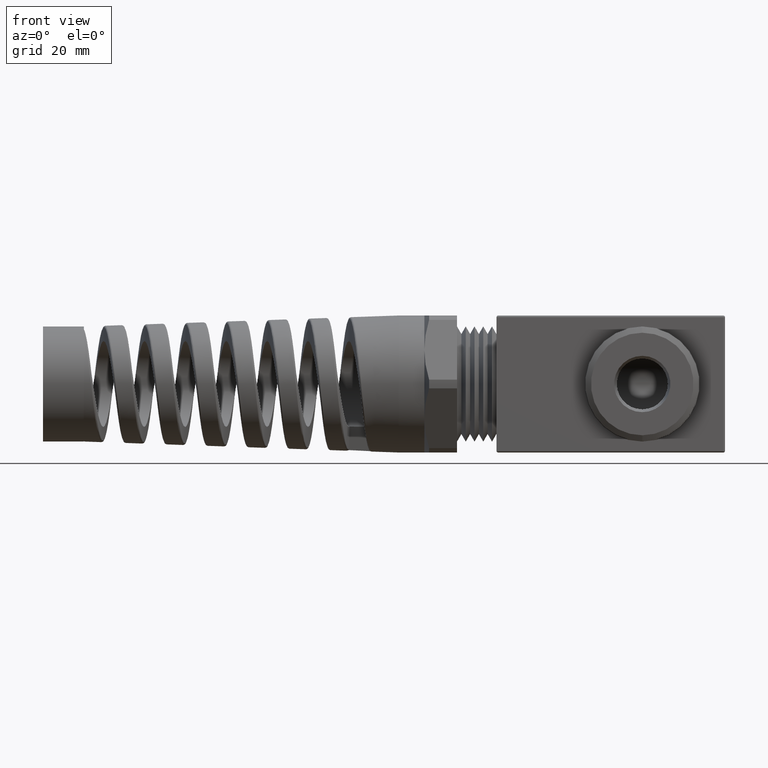
[diagram: clean part render]
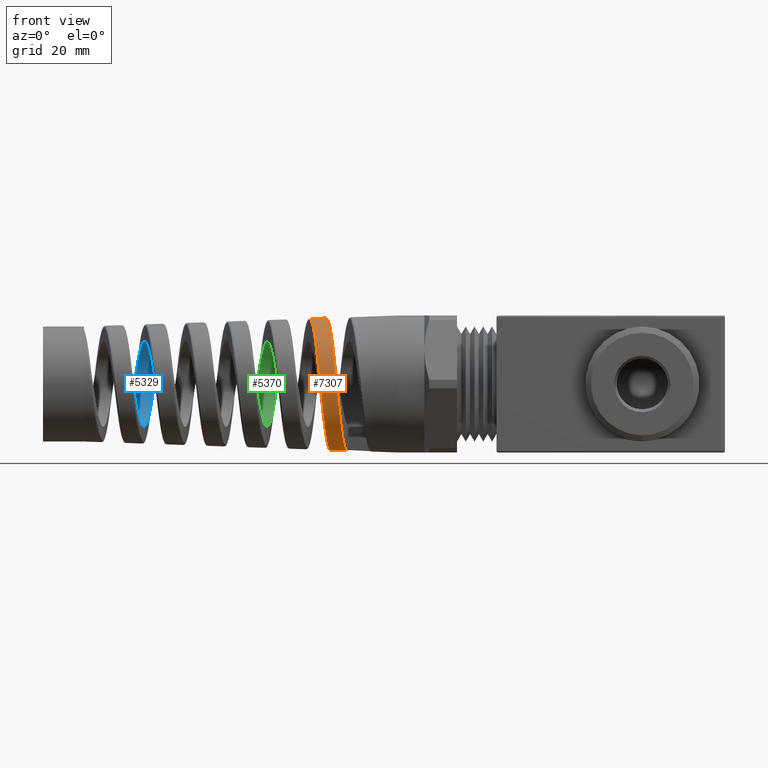
[diagram: same view with three faces highlighted in distinct colors, each labeled with its STEP entity id]
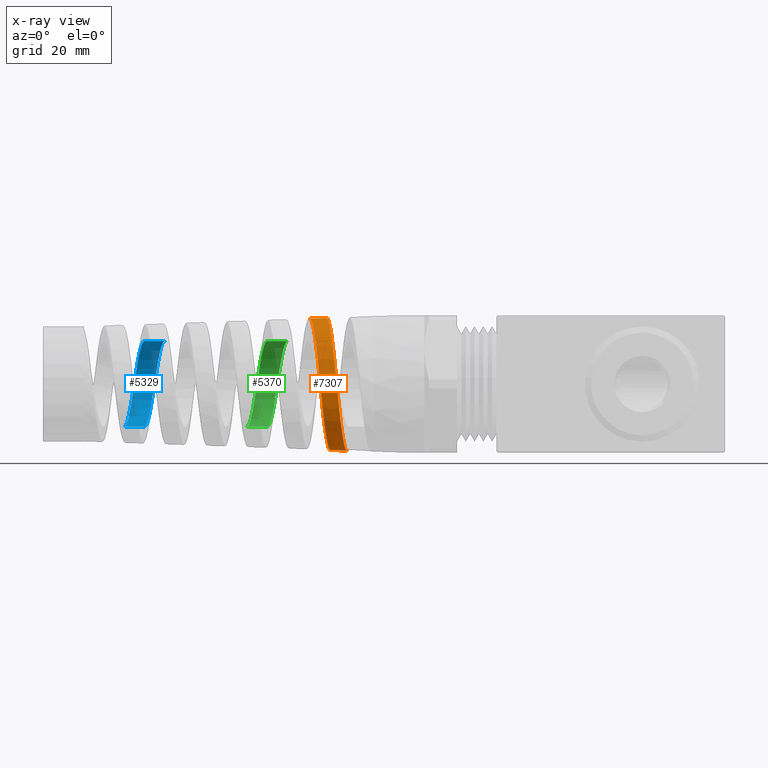
[diagram: x-ray of the same camera — body ghosted, the three highlighted faces saturated]
A machine part, front view with three faces highlighted in distinct colors.
The next image is the same camera in x-ray (body ghosted, the three faces saturated) — at least one of them is partly hidden behind the body in this view.
Their STEP definitions:

[orange] entity #7307 — the highlighted conical surface has half-angle 2 deg.
#1274 = CARTESIAN_POINT ( 'NONE',  ( -1.280042150205117400, 5.885172249663888600E-016, 0.4487667002314245100 ) ) ;
#5747 = CARTESIAN_POINT ( 'NONE',  ( -1.084793797462008100, -0.4397816468758589100, -0.1198917467120175900 ) ) ;
#5748 = CARTESIAN_POINT ( 'NONE',  ( -1.081853655030818400, -0.4310561484477175600, -0.1485465817472438900 ) ) ;
#5749 = CARTESIAN_POINT ( 'NONE',  ( -1.080393823315513300, -0.4260192967438751200, -0.1625590650972010000 ) ) ;
#5750 = CARTESIAN_POINT ( 'NONE',  ( -1.076026295479574300, -0.4089422983148878800, -0.2036758637917554500 ) ) ;
#5751 = CARTESIAN_POINT ( 'NONE',  ( -1.073130834105281000, -0.3949542605351433800, -0.2298682549837802500 ) ) ;
#5753 = CARTESIAN_POINT ( 'NONE',  ( -1.068725015380209700, -0.3699509037314179800, -0.2672646679726735100 ) ) ;
#5755 = CARTESIAN_POINT ( 'NONE',  ( -1.067254778441784500, -0.3609854367913191100, -0.2793333812387986400 ) ) ;
#5757 = CARTESIAN_POINT ( 'NONE',  ( -1.064340303508236600, -0.3420873183028898500, -0.3023355091455400300 ) ) ;
#5758 = CARTESIAN_POINT ( 'NONE',  ( -1.061438638587469200, -0.3221480327997188200, -0.3243154323104278100 ) ) ;
#5760 = CARTESIAN_POINT ( 'NONE',  ( -1.058533862977911300, -0.3001533759176027700, -0.3442734986922134600 ) ) ;
#5762 = CARTESIAN_POINT ( 'NONE',  ( -1.055613689851013300, -0.2771152307606120100, -0.3632031849335832200 ) ) ;
#5764 = CARTESIAN_POINT ( 'NONE',  ( -1.054137718585550900, -0.2650032113726448200, -0.3721979102803952300 ) ) ;
#5765 = CARTESIAN_POINT ( 'NONE',  ( -1.049742825098099400, -0.2276972935424651500, -0.3971441322651935200 ) ) ;
#5767 = CARTESIAN_POINT ( 'NONE',  ( -1.046854116310217400, -0.2015316168677704600, -0.4111375105614200100 ) ) ;
#5769 = CARTESIAN_POINT ( 'NONE',  ( -1.042497854474758700, -0.1603900780698311000, -0.4282537205781493700 ) ) ;
#5771 = CARTESIAN_POINT ( 'NONE',  ( -1.041042063928685900, -0.1463585028384668800, -0.4333089703860627500 ) ) ;
#5772 = CARTESIAN_POINT ( 'NONE',  ( -1.038108329675548200, -0.1176407282108116000, -0.4420766964508186500 ) ) ;
#5774 = CARTESIAN_POINT ( 'NONE',  ( -1.036645131233526300, -0.1030984153433963900, -0.4457403606353551000 ) ) ;
#5776 = CARTESIAN_POINT ( 'NONE',  ( -1.032285749675343700, -0.05934602358770853900, -0.4545270787901384300 ) ) ;
#5778 = CARTESIAN_POINT ( 'NONE',  ( -1.029401930811416400, -0.02984042028568032600, -0.4575192495582627900 ) ) ;
#5779 = CARTESIAN_POINT ( 'NONE',  ( -1.026485781592479700, 4.813278860699509500E-013, -0.4576210837329092700 ) ) ;
#5786 = B_SPLINE_CURVE_WITH_KNOTS ( 'NONE', 3,
 ( #5779, #5778, #5776, #5774, #5772, #5771, #5769, #5767, #5765, #5764, #5762, #5760, #5758, #5757, #5755, #5753, #5751, #5750, #5749, #5748, #5747, #5864, #5863, #5861, #5860, #5858, #5857, #5856, #5855, #5853, #5851, #5850, #5849, #5847, #5845, #5843, #5841, #5839, #5838, #5837, #5836, #5835, #5834, #5833, #5832, #5831, #5830, #5829 ),
 .UNSPECIFIED., .F., .F.,
 ( 4, 2, 2, 2, 2, 2, 1, 2, 2, 2, 2, 2, 2, 2, 2, 2, 2, 1, 2, 2, 2, 2, 2, 2, 4 ),
 ( 0.001656132608862234800, 0.003956914716917000300, 0.005107305770944384200, 0.006257696824971768100, 0.008558478933026534100, 0.009708869987053916200, 0.01085926104108130000, 0.01200965209510868200, 0.01316004314913606600, 0.01546082525719083000, 0.01661121631121821200, 0.01776160736524560000, 0.02006238947330036100, 0.02121278052732774400, 0.02236317158135512500, 0.02466395368940989300, 0.02581434474343727700, 0.02696473579746466000, 0.02811512685149204100, 0.02926551790551942500, 0.03156630001357418200, 0.03386708212162894300, 0.03616786422968371100, 0.03731825528371109100, 0.03846864633773847100 ),
 .UNSPECIFIED. ) ;
#5829 = CARTESIAN_POINT ( 'NONE',  ( -1.166886449311259200, -7.310497178739230800E-013, 0.4527181843790152900 ) ) ;
#5830 = CARTESIAN_POINT ( 'NONE',  ( -1.165421508503081900, -0.01482862004874204100, 0.4527693412392728200 ) ) ;
#5831 = CARTESIAN_POINT ( 'NONE',  ( -1.163955892557808800, -0.02967376021995735800, 0.4520937470108257200 ) ) ;
#5832 = CARTESIAN_POINT ( 'NONE',  ( -1.161009483389686500, -0.05939637141548061200, 0.4492600048756004200 ) ) ;
#5833 = CARTESIAN_POINT ( 'NONE',  ( -1.159521480493123300, -0.07433971843845702000, 0.4470831626554872000 ) ) ;
#5834 = CARTESIAN_POINT ( 'NONE',  ( -1.155102846753380400, -0.1183023806747009900, 0.4384327570910498400 ) ) ;
#5835 = CARTESIAN_POINT ( 'NONE',  ( -1.152194245038253200, -0.1466987296008700800, 0.4298630258049971900 ) ) ;
#5836 = CARTESIAN_POINT ( 'NONE',  ( -1.146333659346875400, -0.2016820995500536500, 0.4072009626231057900 ) ) ;
#5837 = CARTESIAN_POINT ( 'NONE',  ( -1.143358979735730600, -0.2284381970826038200, 0.3929342729866102100 ) ) ;
#5838 = CARTESIAN_POINT ( 'NONE',  ( -1.137499748856670700, -0.2778690075903116300, 0.3599386138865882100 ) ) ;
#5839 = CARTESIAN_POINT ( 'NONE',  ( -1.134590623235814700, -0.3008216543892533500, 0.3411403656525067200 ) ) ;
#5841 = CARTESIAN_POINT ( 'NONE',  ( -1.130175175780616200, -0.3325513215441061600, 0.3094338929502665800 ) ) ;
#5843 = CARTESIAN_POINT ( 'NONE',  ( -1.128691803139314300, -0.3426853987378207800, 0.2982487817775902900 ) ) ;
#5845 = CARTESIAN_POINT ( 'NONE',  ( -1.125757669470219600, -0.3615978787481897700, 0.2751829377994323100 ) ) ;
#5847 = CARTESIAN_POINT ( 'NONE',  ( -1.122840032465555000, -0.3792759089293960000, 0.2513106309173830900 ) ) ;
#5849 = CARTESIAN_POINT ( 'NONE',  ( -1.119925879288153200, -0.3945271342265154700, 0.2258563130980431900 ) ) ;
#5850 = CARTESIAN_POINT ( 'NONE',  ( -1.116998990031410800, -0.4085510985051143400, 0.1996036656463842100 ) ) ;
#5851 = CARTESIAN_POINT ( 'NONE',  ( -1.115522997458010100, -0.4149730213592501300, 0.1860198299061062200 ) ) ;
#5853 = CARTESIAN_POINT ( 'NONE',  ( -1.111096717478492300, -0.4321581159089719600, 0.1444327172135448100 ) ) ;
#5855 = CARTESIAN_POINT ( 'NONE',  ( -1.108188981089374100, -0.4407253175945475800, 0.1159997957371877000 ) ) ;
#5856 = CARTESIAN_POINT ( 'NONE',  ( -1.103814965815490800, -0.4493790273914212700, 0.07232939713741828900 ) ) ;
#5857 = CARTESIAN_POINT ( 'NONE',  ( -1.102354324952810500, -0.4515590434196999300, 0.05760125866932848400 ) ) ;
#5858 = CARTESIAN_POINT ( 'NONE',  ( -1.099413784124293200, -0.4544715575516956000, 0.02779437021330878600 ) ) ;
#5860 = CARTESIAN_POINT ( 'NONE',  ( -1.097936595281962900, -0.4551913847822455800, 0.01274294100801528500 ) ) ;
#5861 = CARTESIAN_POINT ( 'NONE',  ( -1.093550978399616500, -0.4551329803381754500, -0.03194964066716447800 ) ) ;
#5863 = CARTESIAN_POINT ( 'NONE',  ( -1.090656115882113800, -0.4521964470721933600, -0.06145755617550043000 ) ) ;
#5864 = CARTESIAN_POINT ( 'NONE',  ( -1.086270684399626200, -0.4434506609932805700, -0.1052806946517262400 ) ) ;
#6007 = CARTESIAN_POINT ( 'NONE',  ( -1.139661871627421200, -1.003172430457774500E-012, -0.4536688875808225800 ) ) ;
#6018 = CARTESIAN_POINT ( 'NONE',  ( -1.026485781592479700, 4.813278860699509500E-013, -0.4576210837329092700 ) ) ;
#6025 = CARTESIAN_POINT ( 'NONE',  ( -1.166886449311259200, -7.310497178739230800E-013, 0.4527181843790152900 ) ) ;
#6026 = DIRECTION ( 'NONE',  ( 0.9993908270190959800, 4.273955692856292900E-018, 0.03489949670249403700 ) ) ;
#6027 = VECTOR ( 'NONE', #6026, 39.37007874015748100 ) ;
#6028 = CARTESIAN_POINT ( 'NONE',  ( -0.6720000000000001500, 5.755839955992558400E-017, 0.4699999999999998600 ) ) ;
#6029 = LINE ( 'NONE', #6028, #6027 ) ;
#7105 = VERTEX_POINT ( 'NONE', #1274 ) ;
#7189 = EDGE_CURVE ( 'NONE', #7215, #7209, #5786, .T. ) ;
#7194 = ORIENTED_EDGE ( 'NONE', *, *, #7208, .F. ) ;
#7195 = ORIENTED_EDGE ( 'NONE', *, *, #7309, .T. ) ;
#7208 = EDGE_CURVE ( 'NONE', #7105, #7209, #6029, .T. ) ;
#7209 = VERTEX_POINT ( 'NONE', #6025 ) ;
#7215 = VERTEX_POINT ( 'NONE', #6018 ) ;
#7219 = VERTEX_POINT ( 'NONE', #6007 ) ;
#7307 = ADVANCED_FACE ( 'NONE', ( #8395 ), #8422, .T. ) ;
#7308 = EDGE_LOOP ( 'NONE', ( #7194, #7195, #7310, #7311 ) ) ;
#7309 = EDGE_CURVE ( 'NONE', #7105, #7219, #8417, .T. ) ;
#7310 = ORIENTED_EDGE ( 'NONE', *, *, #7321, .T. ) ;
#7311 = ORIENTED_EDGE ( 'NONE', *, *, #7189, .T. ) ;
#7321 = EDGE_CURVE ( 'NONE', #7219, #7215, #8555, .T. ) ;
#8395 = FACE_OUTER_BOUND ( 'NONE', #7308, .T. ) ;
#8414 = CARTESIAN_POINT ( 'NONE',  ( -1.278565891545506900, -0.01481619964421375900, 0.4488182523197868400 ) ) ;
#8416 = CARTESIAN_POINT ( 'NONE',  ( -1.280042150205117400, 5.885172249663888600E-016, 0.4487667002314245100 ) ) ;
#8417 = B_SPLINE_CURVE_WITH_KNOTS ( 'NONE', 3,
 ( #8416, #8414, #8499, #8498, #8497, #8496, #8495, #8494, #8493, #8492, #8491, #8490, #8489, #8488, #8487, #8486, #8485, #8484, #8483, #8482, #8481, #8479, #8478, #8477, #8476, #8475, #8474, #8473, #8472, #8471, #8470, #8469, #8468, #8467, #8466, #8465, #8464, #8463, #8462, #8461, #8460, #8459, #8458, #8457, #8456, #8455, #8454, #8453 ),
 .UNSPECIFIED., .F., .F.,
 ( 4, 2, 1, 2, 2, 2, 2, 2, 2, 2, 2, 2, 2, 1, 2, 2, 2, 2, 2, 2, 2, 2, 2, 2, 4 ),
 ( 0.3769903344977150700, 0.3781309243523178200, 0.3792715142069205700, 0.3804121040615233200, 0.3815526939161260600, 0.3838338736253315600, 0.3849744634799343000, 0.3861150533345370500, 0.3883962330437425400, 0.3895368228983452900, 0.3906774127529480400, 0.3929585924621534800, 0.3940991823167562200, 0.3952397721713589700, 0.3963803620259617200, 0.3975209518805644700, 0.3998021315897699600, 0.4020833112989754500, 0.4043644910081809500, 0.4055050808627837000, 0.4066456707173864400, 0.4089268504265919400, 0.4112080301357973800, 0.4123486199904001200, 0.4134892098450028700 ),
 .UNSPECIFIED. ) ;
#8418 = DIRECTION ( 'NONE',  ( 0.0000000000000000000, 0.0000000000000000000, -1.000000000000000000 ) ) ;
#8419 = DIRECTION ( 'NONE',  ( 1.000000000000000000, 0.0000000000000000000, 0.0000000000000000000 ) ) ;
#8420 = CARTESIAN_POINT ( 'NONE',  ( -0.6720000000000001500, 0.0000000000000000000, 0.0000000000000000000 ) ) ;
#8421 = AXIS2_PLACEMENT_3D ( 'NONE', #8420, #8419, #8418 ) ;
#8422 = CONICAL_SURFACE ( 'NONE', #8421, 0.4699999999999998600, 0.03490658503987965200 ) ;
#8453 = CARTESIAN_POINT ( 'NONE',  ( -1.139661871627421200, -1.003172430457774500E-012, -0.4536688875808225800 ) ) ;
#8454 = CARTESIAN_POINT ( 'NONE',  ( -1.141119234754254900, -0.01479201303062131100, -0.4536179953389717900 ) ) ;
#8455 = CARTESIAN_POINT ( 'NONE',  ( -1.142591498819036700, -0.02973609699756938500, -0.4528329349182315700 ) ) ;
#8456 = CARTESIAN_POINT ( 'NONE',  ( -1.145509120509648800, -0.05919809664442255600, -0.4498278274448832500 ) ) ;
#8457 = CARTESIAN_POINT ( 'NONE',  ( -1.146959102717436200, -0.07376648001666597000, -0.4476146584026159400 ) ) ;
#8458 = CARTESIAN_POINT ( 'NONE',  ( -1.151303611367928000, -0.1169922291027128000, -0.4388893146588284100 ) ) ;
#8459 = CARTESIAN_POINT ( 'NONE',  ( -1.154192203961446300, -0.1451748664594091100, -0.4303113914245891300 ) ) ;
#8460 = CARTESIAN_POINT ( 'NONE',  ( -1.160070783798033700, -0.2002056411010752200, -0.4074006931404505800 ) ) ;
#8461 = CARTESIAN_POINT ( 'NONE',  ( -1.162966639829041000, -0.2261613313946656300, -0.3934373086775030400 ) ) ;
#8462 = CARTESIAN_POINT ( 'NONE',  ( -1.167321426991051000, -0.2628020791511795900, -0.3689052811974518600 ) ) ;
#8463 = CARTESIAN_POINT ( 'NONE',  ( -1.168774437983071600, -0.2746332257414463300, -0.3601247231308634100 ) ) ;
#8464 = CARTESIAN_POINT ( 'NONE',  ( -1.171697652887409500, -0.2975125861595447900, -0.3413313376718338800 ) ) ;
#8465 = CARTESIAN_POINT ( 'NONE',  ( -1.173173589792019500, -0.3085954082331890400, -0.3312744631045102000 ) ) ;
#8466 = CARTESIAN_POINT ( 'NONE',  ( -1.177555942030280600, -0.3399578232483995700, -0.2998678901158103900 ) ) ;
#8467 = CARTESIAN_POINT ( 'NONE',  ( -1.180444073116345500, -0.3585941258518307000, -0.2771360423294728600 ) ) ;
#8468 = CARTESIAN_POINT ( 'NONE',  ( -1.186268135816333400, -0.3913645829971531500, -0.2281315012053676800 ) ) ;
#8469 = CARTESIAN_POINT ( 'NONE',  ( -1.189225359623837800, -0.4055353829737811100, -0.2016339607961880600 ) ) ;
#8470 = CARTESIAN_POINT ( 'NONE',  ( -1.195053615646737300, -0.4280839294312202000, -0.1472257735605078700 ) ) ;
#8471 = CARTESIAN_POINT ( 'NONE',  ( -1.197949772961334900, -0.4366542901757549700, -0.1190979168884529600 ) ) ;
#8472 = CARTESIAN_POINT ( 'NONE',  ( -1.202349320275876400, -0.4453688043439885700, -0.07550009481700957500 ) ) ;
#8473 = CARTESIAN_POINT ( 'NONE',  ( -1.203827660464147100, -0.4475719626130889000, -0.06070573137220117800 ) ) ;
#8474 = CARTESIAN_POINT ( 'NONE',  ( -1.206752868678598200, -0.4504826833298494200, -0.03128869999617433400 ) ) ;
#8475 = CARTESIAN_POINT ( 'NONE',  ( -1.209662694252135600, -0.4519365712534383900, -0.001884861910320286200 ) ) ;
#8476 = CARTESIAN_POINT ( 'NONE',  ( -1.212570856427989800, -0.4505259646390938300, 0.02749019131294669300 ) ) ;
#8477 = CARTESIAN_POINT ( 'NONE',  ( -1.215492585718482400, -0.4476666984848717300, 0.05684925374950101200 ) ) ;
#8478 = CARTESIAN_POINT ( 'NONE',  ( -1.216966358119695900, -0.4455002338949327600, 0.07158138645179752700 ) ) ;
#8479 = CARTESIAN_POINT ( 'NONE',  ( -1.221387750776071500, -0.4368267684243012900, 0.1153276846471022000 ) ) ;
#8481 = CARTESIAN_POINT ( 'NONE',  ( -1.224294028157381100, -0.4282742145663426800, 0.1434888070078006200 ) ) ;
#8482 = CARTESIAN_POINT ( 'NONE',  ( -1.228669400352227200, -0.4114213190551006000, 0.1842653625752400100 ) ) ;
#8483 = CARTESIAN_POINT ( 'NONE',  ( -1.230131050309866400, -0.4051281815536010300, 0.1976115473500231500 ) ) ;
#8484 = CARTESIAN_POINT ( 'NONE',  ( -1.233074643938762800, -0.3911540001704212300, 0.2237970236165805800 ) ) ;
#8485 = CARTESIAN_POINT ( 'NONE',  ( -1.234553960278082000, -0.3834770788966613800, 0.2366075095882570500 ) ) ;
#8486 = CARTESIAN_POINT ( 'NONE',  ( -1.238947169128389800, -0.3588680016507105300, 0.2734362111561704500 ) ) ;
#8487 = CARTESIAN_POINT ( 'NONE',  ( -1.241848754541053500, -0.3402260283272390800, 0.2961561908864451300 ) ) ;
#8488 = CARTESIAN_POINT ( 'NONE',  ( -1.246247330142931800, -0.3089131418781345100, 0.3274794475377851800 ) ) ;
#8489 = CARTESIAN_POINT ( 'NONE',  ( -1.247729244649681900, -0.2978493772593396900, 0.3375079499330360100 ) ) ;
#8490 = CARTESIAN_POINT ( 'NONE',  ( -1.250679665276250400, -0.2748922397825207000, 0.3563248920288262800 ) ) ;
#8491 = CARTESIAN_POINT ( 'NONE',  ( -1.252145109314735100, -0.2630294602203876500, 0.3651009148099907400 ) ) ;
#8492 = CARTESIAN_POINT ( 'NONE',  ( -1.256531191250135100, -0.2263206024498316500, 0.3895809852501241900 ) ) ;
#8493 = CARTESIAN_POINT ( 'NONE',  ( -1.259441681218507400, -0.2003647294042901800, 0.4034547209961159000 ) ) ;
#8494 = CARTESIAN_POINT ( 'NONE',  ( -1.263874586124329200, -0.1591394023003033800, 0.4204690863374795400 ) ) ;
#8495 = CARTESIAN_POINT ( 'NONE',  ( -1.265352851632895100, -0.1451091940730105400, 0.4254562869924464200 ) ) ;
#8496 = CARTESIAN_POINT ( 'NONE',  ( -1.268285469610708200, -0.1168642556455166800, 0.4339590600227704600 ) ) ;
#8497 = CARTESIAN_POINT ( 'NONE',  ( -1.271206422435692700, -0.08832081886896323000, 0.4410383010375454300 ) ) ;
#8498 = CARTESIAN_POINT ( 'NONE',  ( -1.274133269974298400, -0.05918949394788895100, 0.4452998000518684200 ) ) ;
#8499 = CARTESIAN_POINT ( 'NONE',  ( -1.277077286388777400, -0.02976025532047254000, 0.4481264670417622900 ) ) ;
#8548 = DIRECTION ( 'NONE',  ( 0.9993908270190959800, 0.0000000000000000000, -0.03489949670249403700 ) ) ;
#8549 = VECTOR ( 'NONE', #8548, 39.37007874015748100 ) ;
#8550 = CARTESIAN_POINT ( 'NONE',  ( -0.6720000000000001500, 0.0000000000000000000, -0.4699999999999998600 ) ) ;
#8555 = LINE ( 'NONE', #8550, #8549 ) ;

[blue] entity #5329 — the highlighted cylindrical surface (partial cylindrical patch) has radius 7.4828 mm, axis along (1, 0, 0).
#3498 = CARTESIAN_POINT ( 'NONE',  ( -2.276972326431517600, -6.826866793604543200E-013, 0.2945990745134331500 ) ) ;
#3499 = CARTESIAN_POINT ( 'NONE',  ( -2.415068839121449900, 9.140549961176120300E-013, 0.2945990745134331500 ) ) ;
#3500 = DIRECTION ( 'NONE',  ( 1.000000000000000000, 0.0000000000000000000, 0.0000000000000000000 ) ) ;
#3501 = VECTOR ( 'NONE', #3500, 39.37007874015748100 ) ;
#3502 = CARTESIAN_POINT ( 'NONE',  ( 0.4924815508901369000, 3.607798136346485200E-017, 0.2945990745134331500 ) ) ;
#3503 = LINE ( 'NONE', #3502, #3501 ) ;
#3808 = CARTESIAN_POINT ( 'NONE',  ( -2.417496733804530800, 1.643377308688658400E-016, -0.2945990745134332600 ) ) ;
#3809 = DIRECTION ( 'NONE',  ( 1.000000000000000000, 0.0000000000000000000, 0.0000000000000000000 ) ) ;
#3810 = VECTOR ( 'NONE', #3809, 39.37007874015748100 ) ;
#3811 = CARTESIAN_POINT ( 'NONE',  ( 0.4924815508901369000, 0.0000000000000000000, -0.2945990745134331500 ) ) ;
#3812 = LINE ( 'NONE', #3811, #3810 ) ;
#5329 = ADVANCED_FACE ( 'NONE', ( #8875 ), #8955, .F. ) ;
#5344 = ORIENTED_EDGE ( 'NONE', *, *, #8143, .T. ) ;
#5345 = ORIENTED_EDGE ( 'NONE', *, *, #5408, .F. ) ;
#5358 = ORIENTED_EDGE ( 'NONE', *, *, #5369, .F. ) ;
#5369 = EDGE_CURVE ( 'NONE', #7191, #7975, #9284, .T. ) ;
#5408 = EDGE_CURVE ( 'NONE', #7978, #8144, #9530, .T. ) ;
#5428 = EDGE_LOOP ( 'NONE', ( #5429, #5358, #5344, #5345 ) ) ;
#5429 = ORIENTED_EDGE ( 'NONE', *, *, #7974, .F. ) ;
#5783 = CARTESIAN_POINT ( 'NONE',  ( -2.555333945239637300, 1.225863430750712000E-016, -0.2945990745134331500 ) ) ;
#7191 = VERTEX_POINT ( 'NONE', #5783 ) ;
#7974 = EDGE_CURVE ( 'NONE', #7975, #7978, #3503, .T. ) ;
#7975 = VERTEX_POINT ( 'NONE', #3499 ) ;
#7978 = VERTEX_POINT ( 'NONE', #3498 ) ;
#8143 = EDGE_CURVE ( 'NONE', #7191, #8144, #3812, .T. ) ;
#8144 = VERTEX_POINT ( 'NONE', #3808 ) ;
#8775 = DIRECTION ( 'NONE',  ( 1.000000000000000000, 0.0000000000000000000, 0.0000000000000000000 ) ) ;
#8863 = CARTESIAN_POINT ( 'NONE',  ( 0.4924815508901369000, 0.0000000000000000000, 0.0000000000000000000 ) ) ;
#8875 = FACE_OUTER_BOUND ( 'NONE', #5428, .T. ) ;
#8893 = DIRECTION ( 'NONE',  ( 0.0000000000000000000, 0.0000000000000000000, -1.000000000000000000 ) ) ;
#8955 = CYLINDRICAL_SURFACE ( 'NONE', #8956, 0.2945990745134331500 ) ;
#8956 = AXIS2_PLACEMENT_3D ( 'NONE', #8863, #8775, #8893 ) ;
#9031 = CARTESIAN_POINT ( 'NONE',  ( -2.415068839121449900, 9.140549961176120300E-013, 0.2945990745134331500 ) ) ;
#9032 = CARTESIAN_POINT ( 'NONE',  ( -2.416529813137713300, 0.009638977041518214200, 0.2945990745134032300 ) ) ;
#9033 = CARTESIAN_POINT ( 'NONE',  ( -2.418005239808150200, 0.01937425086381341200, 0.2941210990485432800 ) ) ;
#9034 = CARTESIAN_POINT ( 'NONE',  ( -2.420942936744217500, 0.03866735049864051400, 0.2922112566405892200 ) ) ;
#9035 = CARTESIAN_POINT ( 'NONE',  ( -2.422401240839823000, 0.04819913053635167100, 0.2907880781960350800 ) ) ;
#9036 = CARTESIAN_POINT ( 'NONE',  ( -2.426766387900134900, 0.07645639349571264900, 0.2851526366750435900 ) ) ;
#9037 = CARTESIAN_POINT ( 'NONE',  ( -2.429663278051383400, 0.09484698222263293600, 0.2795871508725523700 ) ) ;
#9038 = CARTESIAN_POINT ( 'NONE',  ( -2.434074171656144300, 0.1217288703369597300, 0.2684488301279391300 ) ) ;
#9039 = CARTESIAN_POINT ( 'NONE',  ( -2.435548848689356800, 0.1305286145249685300, 0.2642796492487178800 ) ) ;
#9040 = CARTESIAN_POINT ( 'NONE',  ( -2.438470747783778600, 0.1475183658741974500, 0.2551857831985152600 ) ) ;
#9041 = CARTESIAN_POINT ( 'NONE',  ( -2.439924816319031900, 0.1557526393502843000, 0.2502434417308402900 ) ) ;
#9042 = CARTESIAN_POINT ( 'NONE',  ( -2.442833139749610400, 0.1717047981398031100, 0.2395790622939444100 ) ) ;
#9043 = CARTESIAN_POINT ( 'NONE',  ( -2.444287724454314900, 0.1794226461880102700, 0.2338570590365430800 ) ) ;
#9044 = CARTESIAN_POINT ( 'NONE',  ( -2.447210687734555600, 0.1943323193549828200, 0.2216225613073770600 ) ) ;
#9045 = CARTESIAN_POINT ( 'NONE',  ( -2.448687201484668600, 0.2015612341253502900, 0.2150709843246626200 ) ) ;
#9046 = CARTESIAN_POINT ( 'NONE',  ( -2.453090271448099100, 0.2221018158790669400, 0.1945116368569277400 ) ) ;
#9047 = CARTESIAN_POINT ( 'NONE',  ( -2.455985551404781000, 0.2342713812757742700, 0.1796520035330500000 ) ) ;
#9048 = CARTESIAN_POINT ( 'NONE',  ( -2.461810336623249100, 0.2556249814779854000, 0.1476949264622105500 ) ) ;
#9122 = CARTESIAN_POINT ( 'NONE',  ( -2.464770532760046000, 0.2648695051908051000, 0.1303986327263946000 ) ) ;
#9123 = CARTESIAN_POINT ( 'NONE',  ( -2.470610936157458400, 0.2795941273171559400, 0.09479864010993553600 ) ) ;
#9124 = CARTESIAN_POINT ( 'NONE',  ( -2.473505468612560600, 0.2851646036818524800, 0.07643365639690254100 ) ) ;
#9125 = CARTESIAN_POINT ( 'NONE',  ( -2.477891340214141400, 0.2908148053970570600, 0.04804631875396179300 ) ) ;
#9126 = CARTESIAN_POINT ( 'NONE',  ( -2.479368688238717100, 0.2922475523375167600, 0.03838891138607834800 ) ) ;
#9127 = CARTESIAN_POINT ( 'NONE',  ( -2.482302008592027800, 0.2941373928130324700, 0.01911895692315941600 ) ) ;
#9128 = CARTESIAN_POINT ( 'NONE',  ( -2.483759040439056600, 0.2946023216127332500, 0.009500704190578154400 ) ) ;
#9129 = CARTESIAN_POINT ( 'NONE',  ( -2.488123154489351000, 0.2945925292366148900, -0.01930188395925754000 ) ) ;
#9130 = CARTESIAN_POINT ( 'NONE',  ( -2.491023261348383600, 0.2927264579885632300, -0.03843454976422524400 ) ) ;
#9131 = CARTESIAN_POINT ( 'NONE',  ( -2.496914323759929800, 0.2851448765376365400, -0.07654014114466205200 ) ) ;
#9132 = CARTESIAN_POINT ( 'NONE',  ( -2.499829481742209800, 0.2795113396090028200, -0.09502782357404683500 ) ) ;
#9133 = CARTESIAN_POINT ( 'NONE',  ( -2.504192006432465900, 0.2684939066125451300, -0.1216211420595620400 ) ) ;
#9134 = CARTESIAN_POINT ( 'NONE',  ( -2.505646860015092500, 0.2643869814096925800, -0.1303123850295966600 ) ) ;
#9135 = CARTESIAN_POINT ( 'NONE',  ( -2.508571843121513800, 0.2552893301381751700, -0.1473402577323414700 ) ) ;
#9136 = CARTESIAN_POINT ( 'NONE',  ( -2.510049835863767500, 0.2502676192964147200, -0.1557187977839833700 ) ) ;
#9137 = CARTESIAN_POINT ( 'NONE',  ( -2.514447207101859300, 0.2341328030566959000, -0.1798468443610766500 ) ) ;
#9138 = CARTESIAN_POINT ( 'NONE',  ( -2.517342777942329000, 0.2219414002004915800, -0.1946800859465571100 ) ) ;
#9139 = CARTESIAN_POINT ( 'NONE',  ( -2.523173142476517600, 0.1947537737052091000, -0.2218767419417677600 ) ) ;
#9140 = CARTESIAN_POINT ( 'NONE',  ( -2.526133741860511900, 0.1795866028152575700, -0.2343240135808637200 ) ) ;
#9141 = CARTESIAN_POINT ( 'NONE',  ( -2.531968541921553400, 0.1475707223777097400, -0.2556989893376405100 ) ) ;
#9142 = CARTESIAN_POINT ( 'NONE',  ( -2.534862907288126800, 0.1306459861452190200, -0.2647514832315114900 ) ) ;
#9143 = CARTESIAN_POINT ( 'NONE',  ( -2.539252351340116800, 0.1038801403096369200, -0.2758456232563136800 ) ) ;
#9144 = CARTESIAN_POINT ( 'NONE',  ( -2.540730833425923300, 0.09468009329529182600, -0.2791375896261241700 ) ) ;
#9279 = CARTESIAN_POINT ( 'NONE',  ( -2.543661000760866700, 0.07617199473603861200, -0.2847453972000611500 ) ) ;
#9280 = CARTESIAN_POINT ( 'NONE',  ( -2.545117433574229300, 0.06683665721246558100, -0.2870776824442813900 ) ) ;
#9281 = CARTESIAN_POINT ( 'NONE',  ( -2.549482013757370600, 0.03859521928187596700, -0.2926901142090968500 ) ) ;
#9282 = CARTESIAN_POINT ( 'NONE',  ( -2.552385186043107700, 0.01945589798762022800, -0.2945990745134331500 ) ) ;
#9283 = CARTESIAN_POINT ( 'NONE',  ( -2.555333945239637300, 1.225863430750712000E-016, -0.2945990745134331500 ) ) ;
#9284 = B_SPLINE_CURVE_WITH_KNOTS ( 'NONE', 3,
 ( #9283, #9282, #9281, #9280, #9279, #9144, #9143, #9142, #9141, #9140, #9139, #9138, #9137, #9136, #9135, #9134, #9133, #9132, #9131, #9130, #9129, #9128, #9127, #9126, #9125, #9124, #9123, #9122, #9048, #9047, #9046, #9045, #9044, #9043, #9042, #9041, #9040, #9039, #9038, #9037, #9036, #9035, #9034, #9033, #9032, #9031 ),
 .UNSPECIFIED., .F., .F.,
 ( 4, 2, 2, 2, 2, 2, 2, 2, 2, 2, 2, 2, 2, 2, 2, 2, 2, 2, 2, 2, 2, 2, 4 ),
 ( 0.04640816414762295700, 0.04788263302374463900, 0.04861986746180548000, 0.04935710189986632100, 0.05083157077598800300, 0.05230603965210968400, 0.05378050852823136600, 0.05451774296629220700, 0.05525497740435304800, 0.05672944628047473000, 0.05820391515659641100, 0.05894114959465724500, 0.05967838403271808600, 0.06115285290883976800, 0.06262732178496144300, 0.06410179066108312500, 0.06483902509914396500, 0.06557625953720480600, 0.06631349397526564700, 0.06705072841332648800, 0.06852519728944817000, 0.06926243172750901100, 0.06999966616556985200 ),
 .UNSPECIFIED. ) ;
#9480 = CARTESIAN_POINT ( 'NONE',  ( -2.417496733804530800, 1.643377308688658400E-016, -0.2945990745134332600 ) ) ;
#9481 = CARTESIAN_POINT ( 'NONE',  ( -2.416039215568789100, 0.009596211149188014700, -0.2945990745134332000 ) ) ;
#9482 = CARTESIAN_POINT ( 'NONE',  ( -2.414580637479165000, 0.01919677048221165800, -0.2941313064795367800 ) ) ;
#9483 = CARTESIAN_POINT ( 'NONE',  ( -2.411648380157124000, 0.03840475667012400300, -0.2922444458213269700 ) ) ;
#9484 = CARTESIAN_POINT ( 'NONE',  ( -2.410166806238104100, 0.04806472217971464300, -0.2908128887395228200 ) ) ;
#9485 = CARTESIAN_POINT ( 'NONE',  ( -2.405756549170031000, 0.07655060006451031000, -0.2851378203925359900 ) ) ;
#9486 = CARTESIAN_POINT ( 'NONE',  ( -2.402854711968358500, 0.09492555498611619800, -0.2795486001998416800 ) ) ;
#9487 = CARTESIAN_POINT ( 'NONE',  ( -2.397018645912264700, 0.1304544758861048100, -0.2648394052711847100 ) ) ;
#9488 = CARTESIAN_POINT ( 'NONE',  ( -2.394055135548670800, 0.1477596906536633400, -0.2555905441828860700 ) ) ;
#9489 = CARTESIAN_POINT ( 'NONE',  ( -2.388207043406347400, 0.1797747049952378700, -0.2341805028213179400 ) ) ;
#9490 = CARTESIAN_POINT ( 'NONE',  ( -2.385304118825271500, 0.1946149711908261300, -0.2220056776137643300 ) ) ;
#9491 = CARTESIAN_POINT ( 'NONE',  ( -2.380904275702612900, 0.2151008007294797900, -0.2015278728358767800 ) ) ;
#9492 = CARTESIAN_POINT ( 'NONE',  ( -2.379422714956083200, 0.2216623366155091600, -0.1942885631561552300 ) ) ;
#9493 = CARTESIAN_POINT ( 'NONE',  ( -2.376484450574059000, 0.2339333755565629100, -0.1793248812848978500 ) ) ;
#9494 = CARTESIAN_POINT ( 'NONE',  ( -2.375024715440962300, 0.2396626130389896400, -0.1715885221136768900 ) ) ;
#9495 = CARTESIAN_POINT ( 'NONE',  ( -2.370652865213049900, 0.2556578130038013000, -0.1476360205943270100 ) ) ;
#9496 = CARTESIAN_POINT ( 'NONE',  ( -2.367748616098798800, 0.2647425964239907800, -0.1306834152773873000 ) ) ;
#9497 = CARTESIAN_POINT ( 'NONE',  ( -2.361844440508448400, 0.2796237222813037800, -0.09474899116838346500 ) ) ;
#9498 = CARTESIAN_POINT ( 'NONE',  ( -2.358928292614388000, 0.2851986323169721200, -0.07628104179968579800 ) ) ;
#9499 = CARTESIAN_POINT ( 'NONE',  ( -2.354553954724576400, 0.2908139045721213100, -0.04804163027026451400 ) ) ;
#9500 = CARTESIAN_POINT ( 'NONE',  ( -2.353094693766810700, 0.2922284779161260500, -0.03852864503657164900 ) ) ;
#9501 = CARTESIAN_POINT ( 'NONE',  ( -2.350161041847027100, 0.2941248256924679500, -0.01930095088085553900 ) ) ;
#9502 = CARTESIAN_POINT ( 'NONE',  ( -2.348678817693575600, 0.2946033336362567400, -0.009539468516296402100 ) ) ;
#9503 = CARTESIAN_POINT ( 'NONE',  ( -2.344274632253274100, 0.2945904693742528700, 0.01947084584755713600 ) ) ;
#9504 = CARTESIAN_POINT ( 'NONE',  ( -2.341375009132321300, 0.2926951898031989200, 0.03857793646306557900 ) ) ;
#9505 = CARTESIAN_POINT ( 'NONE',  ( -2.335535186601391400, 0.2851921800108322400, 0.07631613051215334300 ) ) ;
#9506 = CARTESIAN_POINT ( 'NONE',  ( -2.332569323352029500, 0.2794916305695417400, 0.09509642720975283700 ) ) ;
#9507 = CARTESIAN_POINT ( 'NONE',  ( -2.326722792671964200, 0.2647464509960249000, 0.1306453929975732500 ) ) ;
#9508 = CARTESIAN_POINT ( 'NONE',  ( -2.323820335557703400, 0.2557003316111459100, 0.1475793799622541800 ) ) ;
#9509 = CARTESIAN_POINT ( 'NONE',  ( -2.319417444121515600, 0.2395917084414105900, 0.1716911690165745200 ) ) ;
#9510 = CARTESIAN_POINT ( 'NONE',  ( -2.317935355466590200, 0.2337675467412135600, 0.1795403929215256500 ) ) ;
#9511 = CARTESIAN_POINT ( 'NONE',  ( -2.315001376080462900, 0.2214976343519661200, 0.1944757480415077700 ) ) ;
#9512 = CARTESIAN_POINT ( 'NONE',  ( -2.313543138413151700, 0.2150317395791145600, 0.2015988439839751200 ) ) ;
#9513 = CARTESIAN_POINT ( 'NONE',  ( -2.309173063982494800, 0.1946636759270187200, 0.2219531050705252600 ) ) ;
#9514 = CARTESIAN_POINT ( 'NONE',  ( -2.306263265911968000, 0.1797843652905414500, 0.2341896982790840100 ) ) ;
#9515 = CARTESIAN_POINT ( 'NONE',  ( -2.300352745476342600, 0.1474207148265359000, 0.2558014183365769900 ) ) ;
#9522 = CARTESIAN_POINT ( 'NONE',  ( -2.297442995329164600, 0.1304413626196457800, 0.2648438798741870000 ) ) ;
#9523 = CARTESIAN_POINT ( 'NONE',  ( -2.293070252397158400, 0.1038330870689933200, 0.2758613030221385200 ) ) ;
#9524 = CARTESIAN_POINT ( 'NONE',  ( -2.291610621116097600, 0.09477251370470025900, 0.2791062956319830300 ) ) ;
#9525 = CARTESIAN_POINT ( 'NONE',  ( -2.288674012567023700, 0.07626231430590234300, 0.2847212900926504600 ) ) ;
#9526 = CARTESIAN_POINT ( 'NONE',  ( -2.287192396083962600, 0.06678159183230819600, 0.2870925544152649900 ) ) ;
#9527 = CARTESIAN_POINT ( 'NONE',  ( -2.282794388254192300, 0.03835738797856502000, 0.2927294483107283400 ) ) ;
#9528 = CARTESIAN_POINT ( 'NONE',  ( -2.279895400259337900, 0.01925169091590382300, 0.2945990745134779400 ) ) ;
#9529 = CARTESIAN_POINT ( 'NONE',  ( -2.276972326431517600, -6.826866793604543200E-013, 0.2945990745134331500 ) ) ;
#9530 = B_SPLINE_CURVE_WITH_KNOTS ( 'NONE', 3,
 ( #9529, #9528, #9527, #9526, #9525, #9524, #9523, #9522, #9515, #9514, #9513, #9512, #9511, #9510, #9509, #9508, #9507, #9506, #9505, #9504, #9503, #9502, #9501, #9500, #9499, #9498, #9497, #9496, #9495, #9494, #9493, #9492, #9491, #9490, #9489, #9488, #9487, #9486, #9485, #9484, #9483, #9482, #9481, #9480 ),
 .UNSPECIFIED., .F., .F.,
 ( 4, 2, 2, 2, 2, 2, 2, 2, 2, 2, 2, 2, 2, 2, 2, 2, 2, 2, 2, 2, 2, 4 ),
 ( 0.2140432501652591300, 0.2155224133476350600, 0.2162619949388230000, 0.2170015765300109500, 0.2184807397123868500, 0.2199599028947627800, 0.2206994844859507300, 0.2214390660771386700, 0.2229182292595146000, 0.2243973924418905000, 0.2258765556242664200, 0.2266161372154543700, 0.2273557188066423500, 0.2288348819890182500, 0.2303140451713941400, 0.2310536267625821200, 0.2317932083537700700, 0.2332723715361459700, 0.2347515347185218900, 0.2362306979008977900, 0.2369702794920857700, 0.2377098610832737200 ),
 .UNSPECIFIED. ) ;

[green] entity #5370 — the highlighted cylindrical surface (partial cylindrical patch) has radius 7.4828 mm, axis along (1, 0, 0).
#3206 = CARTESIAN_POINT ( 'NONE',  ( -1.433818980354153700, 1.540399444864985900E-015, 0.2945990745134332000 ) ) ;
#3207 = DIRECTION ( 'NONE',  ( 1.000000000000000000, 0.0000000000000000000, 0.0000000000000000000 ) ) ;
#3208 = VECTOR ( 'NONE', #3207, 39.37007874015748100 ) ;
#3209 = CARTESIAN_POINT ( 'NONE',  ( 0.4924815508901369000, 3.607798136346485200E-017, 0.2945990745134331500 ) ) ;
#3210 = LINE ( 'NONE', #3209, #3208 ) ;
#3274 = CARTESIAN_POINT ( 'NONE',  ( -1.573473385898037000, -1.600692183787654500E-015, 0.2945990745134332600 ) ) ;
#3352 = CARTESIAN_POINT ( 'NONE',  ( -1.574343895468626600, 8.492322983148245000E-013, -0.2945990745134330300 ) ) ;
#3373 = CARTESIAN_POINT ( 'NONE',  ( -1.713738971145464700, -8.006833043805450200E-013, -0.2945990745134332600 ) ) ;
#3378 = DIRECTION ( 'NONE',  ( 1.000000000000000000, 0.0000000000000000000, 0.0000000000000000000 ) ) ;
#3379 = VECTOR ( 'NONE', #3378, 39.37007874015748100 ) ;
#3380 = CARTESIAN_POINT ( 'NONE',  ( 0.4924815508901369000, 0.0000000000000000000, -0.2945990745134331500 ) ) ;
#3381 = LINE ( 'NONE', #3380, #3379 ) ;
#5314 = ORIENTED_EDGE ( 'NONE', *, *, #7954, .T. ) ;
#5315 = ORIENTED_EDGE ( 'NONE', *, *, #5342, .F. ) ;
#5342 = EDGE_CURVE ( 'NONE', #7942, #7952, #8948, .T. ) ;
#5370 = ADVANCED_FACE ( 'NONE', ( #9285 ), #9029, .F. ) ;
#5376 = ORIENTED_EDGE ( 'NONE', *, *, #5377, .F. ) ;
#5377 = EDGE_CURVE ( 'NONE', #7956, #7944, #9222, .T. ) ;
#5422 = EDGE_LOOP ( 'NONE', ( #5423, #5376, #5314, #5315 ) ) ;
#5423 = ORIENTED_EDGE ( 'NONE', *, *, #7941, .F. ) ;
#7941 = EDGE_CURVE ( 'NONE', #7944, #7942, #3210, .T. ) ;
#7942 = VERTEX_POINT ( 'NONE', #3206 ) ;
#7944 = VERTEX_POINT ( 'NONE', #3274 ) ;
#7952 = VERTEX_POINT ( 'NONE', #3352 ) ;
#7954 = EDGE_CURVE ( 'NONE', #7956, #7952, #3381, .T. ) ;
#7956 = VERTEX_POINT ( 'NONE', #3373 ) ;
#8865 = CARTESIAN_POINT ( 'NONE',  ( -1.574343895468626600, 8.492322983148245000E-013, -0.2945990745134330300 ) ) ;
#8866 = CARTESIAN_POINT ( 'NONE',  ( -1.571419127267952500, 0.01926483630524972200, -0.2945990745133774100 ) ) ;
#8867 = CARTESIAN_POINT ( 'NONE',  ( -1.568457117460846200, 0.03878080830251518600, -0.2926669663568085600 ) ) ;
#8868 = CARTESIAN_POINT ( 'NONE',  ( -1.562623929550161600, 0.07647215365511531000, -0.2851489330235029700 ) ) ;
#8869 = CARTESIAN_POINT ( 'NONE',  ( -1.559721813930538900, 0.09485593386142025800, -0.2795826452087957200 ) ) ;
#8870 = CARTESIAN_POINT ( 'NONE',  ( -1.555306376803173200, 0.1217088941586219600, -0.2684575050794468200 ) ) ;
#8871 = CARTESIAN_POINT ( 'NONE',  ( -1.553826051030616100, 0.1305242734046795400, -0.2642820595640877900 ) ) ;
#8872 = CARTESIAN_POINT ( 'NONE',  ( -1.550896452478072200, 0.1475268256540088500, -0.2551811683249907100 ) ) ;
#8873 = CARTESIAN_POINT ( 'NONE',  ( -1.549439516524866900, 0.1557639915098245600, -0.2502363828325700500 ) ) ;
#8874 = CARTESIAN_POINT ( 'NONE',  ( -1.546525911411671200, 0.1717159675577011000, -0.2395710642584445200 ) ) ;
#8896 = CARTESIAN_POINT ( 'NONE',  ( -1.545069491774634400, 0.1794308097993035900, -0.2338505106080736900 ) ) ;
#8897 = CARTESIAN_POINT ( 'NONE',  ( -1.542143946421090700, 0.1943296530387709200, -0.2216245987401254100 ) ) ;
#8898 = CARTESIAN_POINT ( 'NONE',  ( -1.540667449368676700, 0.2015475895314273500, -0.2150842632764402300 ) ) ;
#8899 = CARTESIAN_POINT ( 'NONE',  ( -1.536251878007262500, 0.2221118994011306600, -0.1945022998637777300 ) ) ;
#8900 = CARTESIAN_POINT ( 'NONE',  ( -1.533349858797872200, 0.2342834792098370000, -0.1796354600556305800 ) ) ;
#8901 = CARTESIAN_POINT ( 'NONE',  ( -1.528973656147736100, 0.2502916259520784900, -0.1556758645115212100 ) ) ;
#8902 = CARTESIAN_POINT ( 'NONE',  ( -1.527511195931780600, 0.2552501931371654600, -0.1474108193121973500 ) ) ;
#8903 = CARTESIAN_POINT ( 'NONE',  ( -1.524565279774885000, 0.2643898792899674900, -0.1303096407634140600 ) ) ;
#8904 = CARTESIAN_POINT ( 'NONE',  ( -1.523086441327635900, 0.2685512088407271400, -0.1214979800633548700 ) ) ;
#8905 = CARTESIAN_POINT ( 'NONE',  ( -1.518695918348886200, 0.2796020185955920300, -0.09477821902695589300 ) ) ;
#8906 = CARTESIAN_POINT ( 'NONE',  ( -1.515796217004890200, 0.2851692769743510200, -0.07641254522083984500 ) ) ;
#8907 = CARTESIAN_POINT ( 'NONE',  ( -1.511406531507124800, 0.2908145371237446100, -0.04804648192043719400 ) ) ;
#8908 = CARTESIAN_POINT ( 'NONE',  ( -1.509928581878798900, 0.2922462447807719900, -0.03840152613316466500 ) ) ;
#8909 = CARTESIAN_POINT ( 'NONE',  ( -1.506986728754644300, 0.2941382846338702600, -0.01911058111265274300 ) ) ;
#8910 = CARTESIAN_POINT ( 'NONE',  ( -1.505525842512849300, 0.2946029126975325800, -0.009485565568721649300 ) ) ;
#8911 = CARTESIAN_POINT ( 'NONE',  ( -1.501151362014530500, 0.2945913266889063100, 0.01932652641501160900 ) ) ;
#8912 = CARTESIAN_POINT ( 'NONE',  ( -1.498245777329235000, 0.2927227675488312500, 0.03845122201872644400 ) ) ;
#8913 = CARTESIAN_POINT ( 'NONE',  ( -1.493824251314275700, 0.2870437438334115200, 0.06699723078808855800 ) ) ;
#8914 = CARTESIAN_POINT ( 'NONE',  ( -1.492348121140904900, 0.2846729792712394100, 0.07643772698113525400 ) ) ;
#8915 = CARTESIAN_POINT ( 'NONE',  ( -1.489422453428532100, 0.2790706674140045500, 0.09487356756393285100 ) ) ;
#8916 = CARTESIAN_POINT ( 'NONE',  ( -1.486509896813423400, 0.2725908076557140300, 0.1129540129586938100 ) ) ;
#8917 = CARTESIAN_POINT ( 'NONE',  ( -1.483596728454401600, 0.2643787252586282700, 0.1303285674923042900 ) ) ;
#8918 = CARTESIAN_POINT ( 'NONE',  ( -1.480669097982369600, 0.2552876832543503100, 0.1473426097658103200 ) ) ;
#8919 = CARTESIAN_POINT ( 'NONE',  ( -1.479189840962380700, 0.2502712807606932700, 0.1557135458340937200 ) ) ;
#8920 = CARTESIAN_POINT ( 'NONE',  ( -1.474779336106548000, 0.2341191793755272300, 0.1798667702921036800 ) ) ;
#8921 = CARTESIAN_POINT ( 'NONE',  ( -1.471876498261252700, 0.2219215108540676700, 0.1947019159546154700 ) ) ;
#8936 = CARTESIAN_POINT ( 'NONE',  ( -1.466036677138200500, 0.1947440097581417700, 0.2218845729641225900 ) ) ;
#8937 = CARTESIAN_POINT ( 'NONE',  ( -1.463071996554707200, 0.1795822649583072600, 0.2343283796995739000 ) ) ;
#8938 = CARTESIAN_POINT ( 'NONE',  ( -1.457223644873022500, 0.1475439398714476500, 0.2557153988859372500 ) ) ;
#8939 = CARTESIAN_POINT ( 'NONE',  ( -1.454325140394399300, 0.1306186604838227300, 0.2647637921120771800 ) ) ;
#8940 = CARTESIAN_POINT ( 'NONE',  ( -1.449931437535118700, 0.1038745944893227100, 0.2758474300548152700 ) ) ;
#8941 = CARTESIAN_POINT ( 'NONE',  ( -1.448451013679081800, 0.09468038798467907900, 0.2791378296828105300 ) ) ;
#8943 = CARTESIAN_POINT ( 'NONE',  ( -1.445511900100472600, 0.07615332870257852900, 0.2847507231886797200 ) ) ;
#8944 = CARTESIAN_POINT ( 'NONE',  ( -1.444051438322561800, 0.06681190537759072700, 0.2870835269700274800 ) ) ;
#8945 = CARTESIAN_POINT ( 'NONE',  ( -1.439676433115083300, 0.03856263235388734300, 0.2926947350130567600 ) ) ;
#8946 = CARTESIAN_POINT ( 'NONE',  ( -1.436769478736119600, 0.01943171443403890100, 0.2945990745134330300 ) ) ;
#8947 = CARTESIAN_POINT ( 'NONE',  ( -1.433818980354153700, 1.540399444864985900E-015, 0.2945990745134332000 ) ) ;
#8948 = B_SPLINE_CURVE_WITH_KNOTS ( 'NONE', 3,
 ( #8947, #8946, #8945, #8944, #8943, #8941, #8940, #8939, #8938, #8937, #8936, #8921, #8920, #8919, #8918, #8917, #8916, #8915, #8914, #8913, #8912, #8911, #8910, #8909, #8908, #8907, #8906, #8905, #8904, #8903, #8902, #8901, #8900, #8899, #8898, #8897, #8896, #8874, #8873, #8872, #8871, #8870, #8869, #8868, #8867, #8866, #8865 ),
 .UNSPECIFIED., .F., .F.,
 ( 4, 2, 2, 2, 2, 2, 2, 2, 1, 2, 2, 2, 2, 2, 2, 2, 2, 2, 2, 2, 2, 2, 2, 4 ),
 ( 0.07205645331453766600, 0.07353539581648772800, 0.07427486706746276600, 0.07501433831843779000, 0.07649328082038785200, 0.07797222332233791400, 0.07945116582428797500, 0.08019063707526301300, 0.08093010832623803700, 0.08166957957721306100, 0.08240905082818809900, 0.08388799333013814700, 0.08462746458111317100, 0.08536693583208820900, 0.08684587833403827100, 0.08758534958501329500, 0.08832482083598833200, 0.08980376333793839400, 0.09054323458891341800, 0.09128270583988845600, 0.09202217709086349400, 0.09276164834183851800, 0.09424059084378858000, 0.09571953334573864200 ),
 .UNSPECIFIED. ) ;
#9025 = DIRECTION ( 'NONE',  ( 0.0000000000000000000, 0.0000000000000000000, -1.000000000000000000 ) ) ;
#9026 = DIRECTION ( 'NONE',  ( 1.000000000000000000, 0.0000000000000000000, 0.0000000000000000000 ) ) ;
#9027 = CARTESIAN_POINT ( 'NONE',  ( 0.4924815508901369000, 0.0000000000000000000, 0.0000000000000000000 ) ) ;
#9028 = AXIS2_PLACEMENT_3D ( 'NONE', #9027, #9026, #9025 ) ;
#9029 = CYLINDRICAL_SURFACE ( 'NONE', #9028, 0.2945990745134331500 ) ;
#9187 = CARTESIAN_POINT ( 'NONE',  ( -1.620230782340754500, 0.2556548564225763500, 0.1476406233569490200 ) ) ;
#9188 = CARTESIAN_POINT ( 'NONE',  ( -1.623131873089113100, 0.2647464358005540100, 0.1306785557291793600 ) ) ;
#9189 = CARTESIAN_POINT ( 'NONE',  ( -1.629030375684103800, 0.2796394408482099100, 0.09470661707959798800 ) ) ;
#9190 = CARTESIAN_POINT ( 'NONE',  ( -1.631932324748872400, 0.2851974303404208900, 0.07628626144949664200 ) ) ;
#9191 = CARTESIAN_POINT ( 'NONE',  ( -1.636298502424120600, 0.2908137831766816100, 0.04804265326014559000 ) ) ;
#9192 = CARTESIAN_POINT ( 'NONE',  ( -1.637755894829680200, 0.2922291981307856300, 0.03852516738687430900 ) ) ;
#9193 = CARTESIAN_POINT ( 'NONE',  ( -1.640687072037005900, 0.2941263517862375800, 0.01928164793961029800 ) ) ;
#9194 = CARTESIAN_POINT ( 'NONE',  ( -1.642166501853495400, 0.2946037013364752300, 0.009519747681618433800 ) ) ;
#9195 = CARTESIAN_POINT ( 'NONE',  ( -1.646559759606786000, 0.2945897180235952900, -0.01946585910140398800 ) ) ;
#9196 = CARTESIAN_POINT ( 'NONE',  ( -1.649454406327147000, 0.2926968844859203500, -0.03856986416251055600 ) ) ;
#9197 = CARTESIAN_POINT ( 'NONE',  ( -1.655286364013383500, 0.2851899597472115100, -0.07632684631676200900 ) ) ;
#9198 = CARTESIAN_POINT ( 'NONE',  ( -1.658245730458281600, 0.2794878500610085100, -0.09510565516666424900 ) ) ;
#9199 = CARTESIAN_POINT ( 'NONE',  ( -1.664077106770722700, 0.2647497207615600600, -0.1306373963805204700 ) ) ;
#9200 = CARTESIAN_POINT ( 'NONE',  ( -1.666974968482803700, 0.2557039395626085600, -0.1475753030720069500 ) ) ;
#9206 = CARTESIAN_POINT ( 'NONE',  ( -1.671373881388706500, 0.2395805728549674800, -0.1717071746747126900 ) ) ;
#9207 = CARTESIAN_POINT ( 'NONE',  ( -1.672853200888436000, 0.2337571315193751100, -0.1795535258812301100 ) ) ;
#9208 = CARTESIAN_POINT ( 'NONE',  ( -1.675780075594058200, 0.2214968526301510400, -0.1944762439669307200 ) ) ;
#9209 = CARTESIAN_POINT ( 'NONE',  ( -1.677235266718422300, 0.2150342280591397100, -0.2015961253242556100 ) ) ;
#9210 = CARTESIAN_POINT ( 'NONE',  ( -1.681597181739362200, 0.1946693797059498300, -0.2219478687065025400 ) ) ;
#9211 = CARTESIAN_POINT ( 'NONE',  ( -1.684509030928889900, 0.1797485147900276500, -0.2342153615857668300 ) ) ;
#9212 = CARTESIAN_POINT ( 'NONE',  ( -1.690400282846741000, 0.1474204169459377200, -0.2557998921803099100 ) ) ;
#9213 = CARTESIAN_POINT ( 'NONE',  ( -1.693302516516332000, 0.1304494725378739500, -0.2648401744888229100 ) ) ;
#9214 = CARTESIAN_POINT ( 'NONE',  ( -1.697669085599175600, 0.1038358552916530300, -0.2758603304412385900 ) ) ;
#9215 = CARTESIAN_POINT ( 'NONE',  ( -1.699126652014333100, 0.09477037860719556000, -0.2791073199202214700 ) ) ;
#9216 = CARTESIAN_POINT ( 'NONE',  ( -1.702061067418376300, 0.07624344579506744900, -0.2847266367372302500 ) ) ;
#9217 = CARTESIAN_POINT ( 'NONE',  ( -1.703539488172486600, 0.06676807183269134500, -0.2870954424333373400 ) ) ;
#9218 = CARTESIAN_POINT ( 'NONE',  ( -1.707926829600544500, 0.03836619988585546900, -0.2927272869460600900 ) ) ;
#9219 = CARTESIAN_POINT ( 'NONE',  ( -1.710820226067632800, 0.01926272422006308400, -0.2945990745134854900 ) ) ;
#9220 = CARTESIAN_POINT ( 'NONE',  ( -1.713738971145464700, -8.006833043805450200E-013, -0.2945990745134332600 ) ) ;
#9222 = B_SPLINE_CURVE_WITH_KNOTS ( 'NONE', 3,
 ( #9220, #9219, #9218, #9217, #9216, #9215, #9214, #9213, #9212, #9211, #9210, #9209, #9208, #9207, #9206, #9200, #9199, #9198, #9197, #9196, #9195, #9194, #9193, #9192, #9191, #9190, #9189, #9188, #9187, #9241, #9240, #9239, #9238, #9237, #9236, #9235, #9234, #9233, #9232, #9231, #9230, #9229, #9228, #9227 ),
 .UNSPECIFIED., .F., .F.,
 ( 4, 2, 2, 2, 2, 2, 2, 2, 2, 2, 2, 2, 2, 2, 2, 2, 2, 2, 2, 2, 2, 4 ),
 ( 0.1879680281529181000, 0.1894427390973601500, 0.1901800945695811500, 0.1909174500418021900, 0.1923921609862442300, 0.1938668719306862500, 0.1946042274029072800, 0.1953415828751282900, 0.1968162938195703300, 0.1982910047640123500, 0.1997657157084543900, 0.2005030711806754000, 0.2012404266528964300, 0.2027151375973384500, 0.2041898485417804900, 0.2049272040140015000, 0.2056645594862225000, 0.2071392704306645500, 0.2086139813751065900, 0.2100886923195486300, 0.2108260477917696700, 0.2115634032639906700 ),
 .UNSPECIFIED. ) ;
#9227 = CARTESIAN_POINT ( 'NONE',  ( -1.573473385898037000, -1.600692183787654500E-015, 0.2945990745134332600 ) ) ;
#9228 = CARTESIAN_POINT ( 'NONE',  ( -1.574927942631221000, 0.009597047644950021400, 0.2945990745134336500 ) ) ;
#9229 = CARTESIAN_POINT ( 'NONE',  ( -1.576383996031522900, 0.01920161192411916700, 0.2941312294188022600 ) ) ;
#9230 = CARTESIAN_POINT ( 'NONE',  ( -1.579312586113418500, 0.03842401192633948500, 0.2922421552880162800 ) ) ;
#9231 = CARTESIAN_POINT ( 'NONE',  ( -1.580792632228409200, 0.04809001335122404400, 0.2908084139831935700 ) ) ;
#9232 = CARTESIAN_POINT ( 'NONE',  ( -1.585191327084435100, 0.07654961113520808400, 0.2851368882356337100 ) ) ;
#9233 = CARTESIAN_POINT ( 'NONE',  ( -1.588087667160940700, 0.09492086538101986200, 0.2795507557149062300 ) ) ;
#9234 = CARTESIAN_POINT ( 'NONE',  ( -1.593916596146697000, 0.1304647616666716200, 0.2648349328708647400 ) ) ;
#9235 = CARTESIAN_POINT ( 'NONE',  ( -1.596875248644861200, 0.1477726671933936000, 0.2555822488235060500 ) ) ;
#9236 = CARTESIAN_POINT ( 'NONE',  ( -1.602708061955668200, 0.1797698246959388300, 0.2341833837229309300 ) ) ;
#9237 = CARTESIAN_POINT ( 'NONE',  ( -1.605604731426913100, 0.1946131134341669600, 0.2220086272161010700 ) ) ;
#9238 = CARTESIAN_POINT ( 'NONE',  ( -1.610000050157521100, 0.2151142294225924200, 0.2015139026166238900 ) ) ;
#9239 = CARTESIAN_POINT ( 'NONE',  ( -1.611479637424416200, 0.2216770779088671500, 0.1942713198441090600 ) ) ;
#9240 = CARTESIAN_POINT ( 'NONE',  ( -1.614410197580298500, 0.2339366019443640000, 0.1793202131799711000 ) ) ;
#9241 = CARTESIAN_POINT ( 'NONE',  ( -1.615866840174657200, 0.2396628465192347000, 0.1715880848014962300 ) ) ;
#9285 = FACE_OUTER_BOUND ( 'NONE', #5422, .T. ) ;